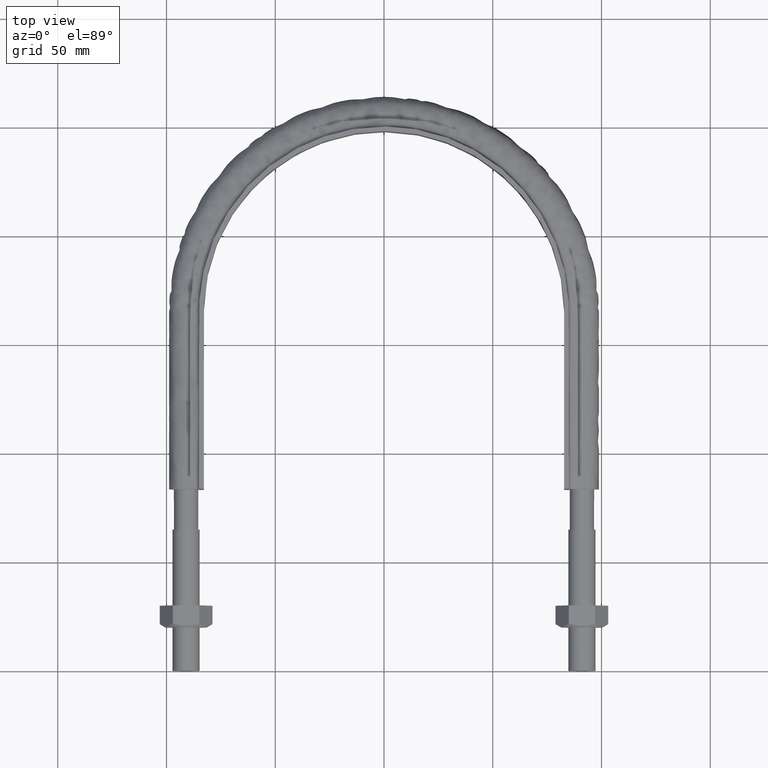
[diagram: clean part render]
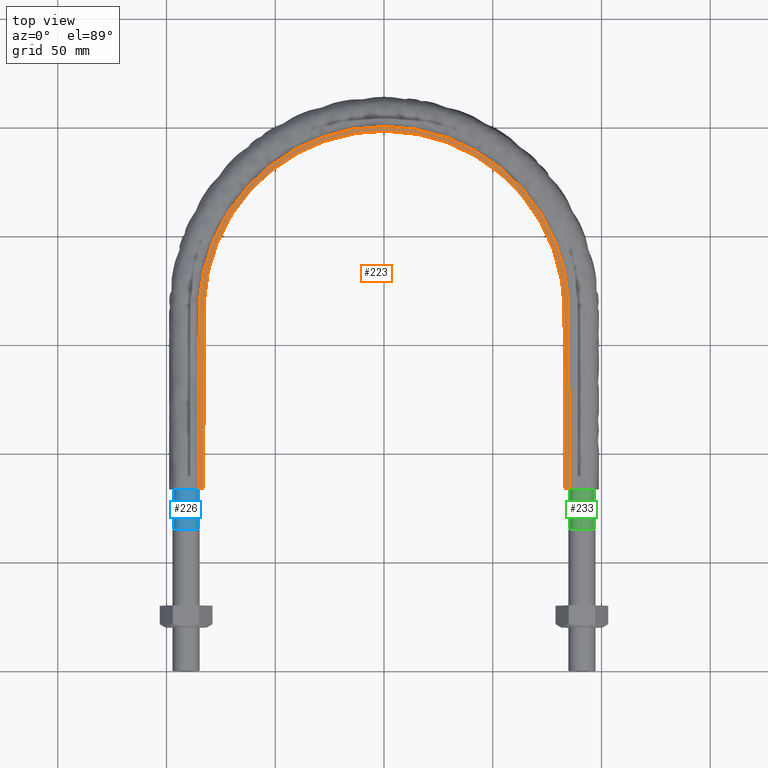
[diagram: same view with three faces highlighted in distinct colors, each labeled with its STEP entity id]
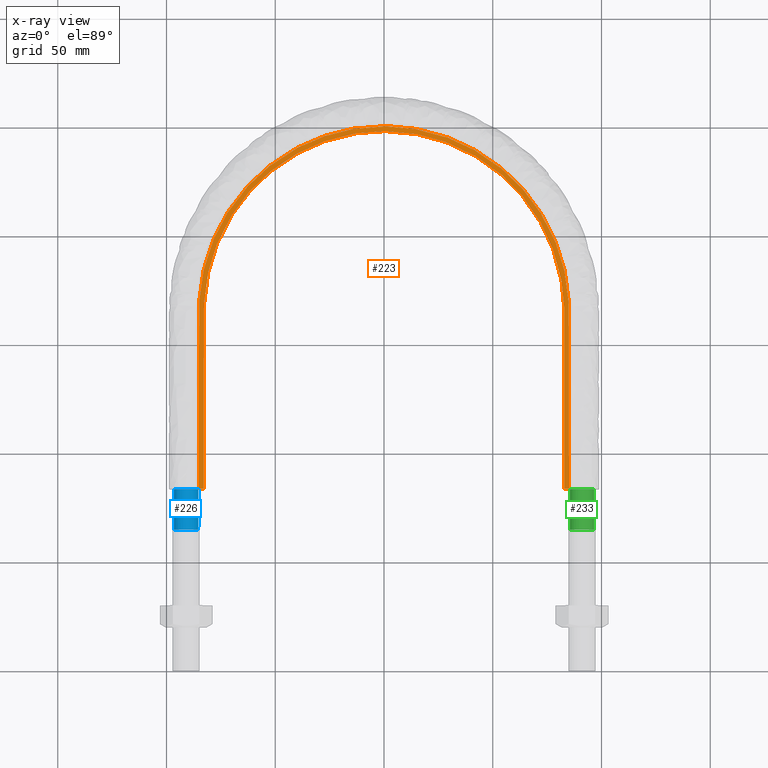
[diagram: x-ray of the same camera — body ghosted, the three highlighted faces saturated]
A machine part, top view with three faces highlighted in distinct colors.
The next image is the same camera in x-ray (body ghosted, the three faces saturated) — at least one of them is partly hidden behind the body in this view.
Their STEP definitions:

[orange] entity #223 — the highlighted planar face has unit normal (0, 0, 1).
#223 = ADVANCED_FACE( '', ( #270 ), #271, .T. );
#270 = FACE_OUTER_BOUND( '', #373, .T. );
#271 = PLANE( '', #374 );
#373 = EDGE_LOOP( '', ( #1408, #1409, #1410, #1411 ) );
#374 = AXIS2_PLACEMENT_3D( '', #1412, #1413, #1414 );
#1408 = ORIENTED_EDGE( '', *, *, #1655, .T. );
#1409 = ORIENTED_EDGE( '', *, *, #1665, .T. );
#1410 = ORIENTED_EDGE( '', *, *, #1664, .T. );
#1411 = ORIENTED_EDGE( '', *, *, #1666, .F. );
#1412 = CARTESIAN_POINT( '', ( 150.000000000000, 383.500000000000, 15.0000000000000 ) );
#1413 = DIRECTION( '', ( 0.000000000000000, 0.000000000000000, 1.00000000000000 ) );
#1414 = DIRECTION( '', ( 1.22460635382238E-016, 1.00000000000000, 0.000000000000000 ) );
#1655 = EDGE_CURVE( '', #1740, #1738, #1741, .T. );
#1664 = EDGE_CURVE( '', #1752, #1754, #1756, .T. );
#1665 = EDGE_CURVE( '', #1738, #1752, #1757, .T. );
#1666 = EDGE_CURVE( '', #1740, #1754, #1758, .F. );
#1738 = VERTEX_POINT( '', #1896 );
#1740 = VERTEX_POINT( '', #1899 );
#1741 = LINE( '', #1900, #1901 );
#1752 = VERTEX_POINT( '', #1986 );
#1754 = VERTEX_POINT( '', #1989 );
#1756 = LINE( '', #2021, #2022 );
#1757 = B_SPLINE_CURVE_WITH_KNOTS( '', 3, ( #2023, #2024, #2025, #2026, #2027, #2028, #2029, #2030, #2031, #2032, #2033, #2034, #2035, #2036, #2037, #2038, #2039 ), .UNSPECIFIED., .F., .F., ( 4, 3, 1, 1, 1, 1, 1, 1, 1, 3, 4 ), ( -10.0000000000000, -9.00000000000000, -8.00000000000000, -7.00000000000000, -6.00000000000000, -5.00000000000000, -4.00000000000000, -3.00000000000000, -2.00000000000000, -1.00000000000000, 0.000000000000000 ), .UNSPECIFIED. );
#1758 = B_SPLINE_CURVE_WITH_KNOTS( '', 3, ( #2040, #2041, #2042, #2043, #2044, #2045, #2046, #2047, #2048, #2049, #2050, #2051, #2052, #2053, #2054, #2055, #2056 ), .UNSPECIFIED., .F., .F., ( 4, 3, 1, 1, 1, 1, 1, 1, 1, 3, 4 ), ( 0.000000000000000, 1.00000000000000, 2.00000000000000, 3.00000000000000, 4.00000000000000, 5.00000000000000, 6.00000000000000, 7.00000000000000, 8.00000000000000, 9.00000000000000, 10.0000000000000 ), .UNSPECIFIED. );
#1896 = CARTESIAN_POINT( '', ( -82.8499999999999, 83.5000000000003, 15.0000000000000 ) );
#1899 = CARTESIAN_POINT( '', ( -85.0499999999999, 83.5000000000003, 15.0000000000000 ) );
#1900 = CARTESIAN_POINT( '', ( -150.000000000000, 83.5000000000003, 15.0000000000000 ) );
#1901 = VECTOR( '', #2386, 1000.00000000000 );
#1986 = CARTESIAN_POINT( '', ( 82.8500000000002, 83.5000000000003, 15.0000000000000 ) );
#1989 = CARTESIAN_POINT( '', ( 85.0500000000002, 83.5000000000003, 15.0000000000000 ) );
#2021 = CARTESIAN_POINT( '', ( -150.000000000000, 83.5000000000003, 15.0000000000000 ) );
#2022 = VECTOR( '', #2390, 1000.00000000000 );
#2023 = CARTESIAN_POINT( '', ( -82.8500000000000, 83.5000000000001, 15.0000000000000 ) );
#2024 = CARTESIAN_POINT( '', ( -82.8500000000000, 110.716666666667, 15.0000000000000 ) );
#2025 = CARTESIAN_POINT( '', ( -82.8500000000000, 137.933333333333, 15.0000000000000 ) );
#2026 = CARTESIAN_POINT( '', ( -82.8500000000000, 165.150000000000, 15.0000000000000 ) );
#2027 = CARTESIAN_POINT( '', ( -82.8500000000000, 175.979512005492, 15.0000000000000 ) );
#2028 = CARTESIAN_POINT( '', ( -78.5361555605724, 197.687272457852, 15.0000000000000 ) );
#2029 = CARTESIAN_POINT( '', ( -60.1089711493570, 225.257212617967, 15.0000000000000 ) );
#2030 = CARTESIAN_POINT( '', ( -32.5307407698323, 243.686657998112, 15.0000000000000 ) );
#2031 = CARTESIAN_POINT( '', ( 5.83899204915099E-014, 250.156671000944, 15.0000000000000 ) );
#2032 = CARTESIAN_POINT( '', ( 32.5307407698323, 243.686657998112, 15.0000000000000 ) );
#2033 = CARTESIAN_POINT( '', ( 60.1089711493571, 225.257212617967, 15.0000000000000 ) );
#2034 = CARTESIAN_POINT( '', ( 78.5361555605725, 197.687272457852, 15.0000000000000 ) );
#2035 = CARTESIAN_POINT( '', ( 82.8500000000000, 175.979512005492, 15.0000000000000 ) );
#2036 = CARTESIAN_POINT( '', ( 82.8500000000000, 165.150000000000, 15.0000000000000 ) );
#2037 = CARTESIAN_POINT( '', ( 82.8500000000000, 137.933333333333, 15.0000000000000 ) );
#2038 = CARTESIAN_POINT( '', ( 82.8500000000000, 110.716666666667, 15.0000000000000 ) );
#2039 = CARTESIAN_POINT( '', ( 82.8500000000000, 83.5000000000000, 15.0000000000000 ) );
#2040 = CARTESIAN_POINT( '', ( 85.0500000000000, 83.5000000000000, 15.0000000000000 ) );
#2041 = CARTESIAN_POINT( '', ( 85.0500000000000, 110.716666666667, 15.0000000000000 ) );
#2042 = CARTESIAN_POINT( '', ( 85.0500000000000, 137.933333333333, 15.0000000000000 ) );
#2043 = CARTESIAN_POINT( '', ( 85.0500000000000, 165.150000000000, 15.0000000000000 ) );
#2044 = CARTESIAN_POINT( '', ( 85.0500000000000, 176.271250144316, 15.0000000000000 ) );
#2045 = CARTESIAN_POINT( '', ( 80.6216056780530, 198.549331025117, 15.0000000000000 ) );
#2046 = CARTESIAN_POINT( '', ( 61.7051055673243, 226.853821731524, 15.0000000000000 ) );
#2047 = CARTESIAN_POINT( '', ( 33.3945624921453, 245.771972488282, 15.0000000000000 ) );
#2048 = CARTESIAN_POINT( '', ( 5.17274622156451E-014, 252.414013755859, 15.0000000000000 ) );
#2049 = CARTESIAN_POINT( '', ( -33.3945624921452, 245.771972488282, 15.0000000000000 ) );
#2050 = CARTESIAN_POINT( '', ( -61.7051055673243, 226.853821731524, 15.0000000000000 ) );
#2051 = CARTESIAN_POINT( '', ( -80.6216056780529, 198.549331025117, 15.0000000000000 ) );
#2052 = CARTESIAN_POINT( '', ( -85.0500000000000, 176.271250144316, 15.0000000000000 ) );
#2053 = CARTESIAN_POINT( '', ( -85.0500000000000, 165.150000000000, 15.0000000000000 ) );
#2054 = CARTESIAN_POINT( '', ( -85.0500000000000, 137.933333333333, 15.0000000000000 ) );
#2055 = CARTESIAN_POINT( '', ( -85.0500000000000, 110.716666666667, 15.0000000000000 ) );
#2056 = CARTESIAN_POINT( '', ( -85.0500000000000, 83.5000000000001, 15.0000000000000 ) );
#2386 = DIRECTION( '', ( 1.00000000000000, -1.22460635382238E-016, 0.000000000000000 ) );
#2390 = DIRECTION( '', ( 1.00000000000000, -1.22460635382238E-016, 0.000000000000000 ) );

[blue] entity #226 — the highlighted cylindrical surface (bore or boss wall) has radius 5.6 mm, axis along (0, 1, -0).
#226 = ADVANCED_FACE( '', ( #277, #278 ), #279, .T. );
#277 = FACE_OUTER_BOUND( '', #1092, .T. );
#278 = FACE_OUTER_BOUND( '', #1093, .T. );
#279 = CYLINDRICAL_SURFACE( '', #1094, 5.59999999999999 );
#1092 = EDGE_LOOP( '', ( #1421, #1422, #1423, #1424, #1425, #1426, #1427, #1428 ) );
#1093 = EDGE_LOOP( '', ( #1429 ) );
#1094 = AXIS2_PLACEMENT_3D( '', #1430, #1431, #1432 );
#1421 = ORIENTED_EDGE( '', *, *, #1667, .F. );
#1422 = ORIENTED_EDGE( '', *, *, #1668, .F. );
#1423 = ORIENTED_EDGE( '', *, *, #1669, .F. );
#1424 = ORIENTED_EDGE( '', *, *, #1670, .F. );
#1425 = ORIENTED_EDGE( '', *, *, #1671, .F. );
#1426 = ORIENTED_EDGE( '', *, *, #1672, .F. );
#1427 = ORIENTED_EDGE( '', *, *, #1673, .F. );
#1428 = ORIENTED_EDGE( '', *, *, #1674, .F. );
#1429 = ORIENTED_EDGE( '', *, *, #1675, .T. );
#1430 = CARTESIAN_POINT( '', ( -91.0000000000000, 83.5000000000000, -1.51545036285519E-014 ) );
#1431 = DIRECTION( '', ( 2.44921270764475E-016, 1.00000000000000, -3.06151588455594E-016 ) );
#1432 = DIRECTION( '', ( 1.00000000000000, -2.44921270764475E-016, 0.000000000000000 ) );
#1667 = EDGE_CURVE( '', #1759, #1760, #1761, .T. );
#1668 = EDGE_CURVE( '', #1762, #1759, #1763, .T. );
#1669 = EDGE_CURVE( '', #1764, #1762, #1765, .T. );
#1670 = EDGE_CURVE( '', #1766, #1764, #1767, .T. );
#1671 = EDGE_CURVE( '', #1768, #1766, #1769, .T. );
#1672 = EDGE_CURVE( '', #1770, #1768, #1771, .T. );
#1673 = EDGE_CURVE( '', #1772, #1770, #1773, .T. );
#1674 = EDGE_CURVE( '', #1760, #1772, #1774, .T. );
#1675 = EDGE_CURVE( '', #1775, #1775, #1776, .F. );
#1759 = VERTEX_POINT( '', #2057 );
#1760 = VERTEX_POINT( '', #2058 );
#1761 = B_SPLINE_CURVE_WITH_KNOTS( '', 3, ( #2059, #2060, #2061, #2062 ), .UNSPECIFIED., .F., .F., ( 4, 4 ), ( 0.000000000000000, 1.00000000000000 ), .UNSPECIFIED. );
#1762 = VERTEX_POINT( '', #2063 );
#1763 = B_SPLINE_CURVE_WITH_KNOTS( '', 3, ( #2064, #2065, #2066, #2067 ), .UNSPECIFIED., .F., .F., ( 4, 4 ), ( 0.000000000000000, 1.00000000000000 ), .UNSPECIFIED. );
#1764 = VERTEX_POINT( '', #2068 );
#1765 = B_SPLINE_CURVE_WITH_KNOTS( '', 3, ( #2069, #2070, #2071, #2072 ), .UNSPECIFIED., .F., .F., ( 4, 4 ), ( 0.000000000000000, 1.00000000000000 ), .UNSPECIFIED. );
#1766 = VERTEX_POINT( '', #2073 );
#1767 = B_SPLINE_CURVE_WITH_KNOTS( '', 3, ( #2074, #2075, #2076, #2077 ), .UNSPECIFIED., .F., .F., ( 4, 4 ), ( 0.000000000000000, 1.00000000000000 ), .UNSPECIFIED. );
#1768 = VERTEX_POINT( '', #2078 );
#1769 = B_SPLINE_CURVE_WITH_KNOTS( '', 3, ( #2079, #2080, #2081, #2082 ), .UNSPECIFIED., .F., .F., ( 4, 4 ), ( 0.000000000000000, 1.00000000000000 ), .UNSPECIFIED. );
#1770 = VERTEX_POINT( '', #2083 );
#1771 = B_SPLINE_CURVE_WITH_KNOTS( '', 3, ( #2084, #2085, #2086, #2087 ), .UNSPECIFIED., .F., .F., ( 4, 4 ), ( 0.000000000000000, 1.00000000000000 ), .UNSPECIFIED. );
#1772 = VERTEX_POINT( '', #2088 );
#1773 = B_SPLINE_CURVE_WITH_KNOTS( '', 3, ( #2089, #2090, #2091, #2092 ), .UNSPECIFIED., .F., .F., ( 4, 4 ), ( 0.000000000000000, 1.00000000000000 ), .UNSPECIFIED. );
#1774 = B_SPLINE_CURVE_WITH_KNOTS( '', 3, ( #2093, #2094, #2095, #2096 ), .UNSPECIFIED., .F., .F., ( 4, 4 ), ( 0.000000000000000, 1.00000000000000 ), .UNSPECIFIED. );
#1775 = VERTEX_POINT( '', #2097 );
#1776 = CIRCLE( '', #2098, 5.59999999999999 );
#2057 = CARTESIAN_POINT( '', ( -87.0402020253699, 83.5000000000000, 3.95979797465925 ) );
#2058 = CARTESIAN_POINT( '', ( -85.4000000000000, 83.5000000000003, 6.24746618339163E-014 ) );
#2059 = CARTESIAN_POINT( '', ( -87.0402020253699, 83.5000000000003, 3.95979797465925 ) );
#2060 = CARTESIAN_POINT( '', ( -86.0058874503102, 83.5000000000003, 2.92548339960766 ) );
#2061 = CARTESIAN_POINT( '', ( -85.4000000000000, 83.5000000000003, 1.46274169980383 ) );
#2062 = CARTESIAN_POINT( '', ( -85.4000000000000, 83.5000000000003, 3.25260651745651E-016 ) );
#2063 = CARTESIAN_POINT( '', ( -90.9999999999994, 83.5000000000000, 5.59999999999998 ) );
#2064 = CARTESIAN_POINT( '', ( -91.0000000000069, 83.5000000000003, 5.59999999999976 ) );
#2065 = CARTESIAN_POINT( '', ( -89.5372583002130, 83.5000000000003, 5.60000000000127 ) );
#2066 = CARTESIAN_POINT( '', ( -88.0745166004197, 83.5000000000003, 4.99411254970100 ) );
#2067 = CARTESIAN_POINT( '', ( -87.0402020253699, 83.5000000000003, 3.95979797465926 ) );
#2068 = CARTESIAN_POINT( '', ( -94.9597979746449, 83.5000000000000, 3.95979797464439 ) );
#2069 = CARTESIAN_POINT( '', ( -94.9597979746448, 83.5000000000003, 3.95979797464453 ) );
#2070 = CARTESIAN_POINT( '', ( -93.9254833995939, 83.5000000000003, 4.99411254969548 ) );
#2071 = CARTESIAN_POINT( '', ( -92.4627416997967, 83.5000000000003, 5.60000000000014 ) );
#2072 = CARTESIAN_POINT( '', ( -90.9999999999994, 83.5000000000003, 5.59999999999999 ) );
#2073 = CARTESIAN_POINT( '', ( -96.6000000000000, 83.5000000000000, 1.22458835622040E-014 ) );
#2074 = CARTESIAN_POINT( '', ( -96.5999999999999, 83.5000000000003, 1.80031616938512E-011 ) );
#2075 = CARTESIAN_POINT( '', ( -96.5999999999950, 83.5000000000003, 1.46274169980885 ) );
#2076 = CARTESIAN_POINT( '', ( -95.9941125496912, 83.5000000000003, 2.92548339959792 ) );
#2077 = CARTESIAN_POINT( '', ( -94.9597979746449, 83.5000000000003, 3.95979797464439 ) );
#2078 = CARTESIAN_POINT( '', ( -94.9597979746514, 83.5000000000000, -3.95979797463796 ) );
#2079 = CARTESIAN_POINT( '', ( -94.9597979746561, 83.5000000000003, -3.95979797463345 ) );
#2080 = CARTESIAN_POINT( '', ( -95.9941125497035, 83.5000000000003, -2.92548339958026 ) );
#2081 = CARTESIAN_POINT( '', ( -96.6000000000050, 83.5000000000003, -1.46274169978168 ) );
#2082 = CARTESIAN_POINT( '', ( -96.6000000000000, 83.5000000000003, 1.81396627473673E-011 ) );
#2083 = CARTESIAN_POINT( '', ( -90.9999999999997, 83.5000000000000, -5.60000000000001 ) );
#2084 = CARTESIAN_POINT( '', ( -91.0000000000032, 83.5000000000003, -5.60000000000010 ) );
#2085 = CARTESIAN_POINT( '', ( -92.4627416998015, 83.5000000000003, -5.59999999999940 ) );
#2086 = CARTESIAN_POINT( '', ( -93.9254833996002, 83.5000000000003, -4.99411254969284 ) );
#2087 = CARTESIAN_POINT( '', ( -94.9597979746514, 83.5000000000003, -3.95979797463793 ) );
#2088 = CARTESIAN_POINT( '', ( -87.0402020253547, 83.5000000000000, -3.95979797464405 ) );
#2089 = CARTESIAN_POINT( '', ( -87.0402020253785, 83.5000000000003, -3.95979797466786 ) );
#2090 = CARTESIAN_POINT( '', ( -88.0745166004279, 83.5000000000003, -4.99411254970444 ) );
#2091 = CARTESIAN_POINT( '', ( -89.5372583002138, 83.5000000000003, -5.59999999999993 ) );
#2092 = CARTESIAN_POINT( '', ( -90.9999999999997, 83.5000000000003, -5.59999999999999 ) );
#2093 = CARTESIAN_POINT( '', ( -85.3999999999996, 83.5000000000003, -1.19024798697631E-011 ) );
#2094 = CARTESIAN_POINT( '', ( -85.4000000000023, 83.5000000000003, -1.46274169981343 ) );
#2095 = CARTESIAN_POINT( '', ( -86.0058874503137, 83.5000000000003, -2.92548339961587 ) );
#2096 = CARTESIAN_POINT( '', ( -87.0402020253786, 83.5000000000003, -3.95979797466797 ) );
#2097 = CARTESIAN_POINT( '', ( -91.0000000000000, 65.0000000000000, 5.59999999999998 ) );
#2098 = AXIS2_PLACEMENT_3D( '', #2391, #2392, #2393 );
#2391 = CARTESIAN_POINT( '', ( -91.0000000000000, 65.0000000000000, -9.49069924212342E-015 ) );
#2392 = DIRECTION( '', ( -2.44921270764475E-016, -1.00000000000000, 3.06151588455594E-016 ) );
#2393 = DIRECTION( '', ( 3.74915180455534E-032, 3.06151588455594E-016, 1.00000000000000 ) );

[green] entity #233 — the highlighted cylindrical surface (bore or boss wall) has radius 5.6 mm, axis along (0, 1, -0).
#233 = ADVANCED_FACE( '', ( #296, #297 ), #298, .T. );
#296 = FACE_OUTER_BOUND( '', #1297, .T. );
#297 = FACE_OUTER_BOUND( '', #1298, .T. );
#298 = CYLINDRICAL_SURFACE( '', #1299, 5.59999999999999 );
#1297 = EDGE_LOOP( '', ( #1472, #1473, #1474, #1475, #1476, #1477, #1478, #1479 ) );
#1298 = EDGE_LOOP( '', ( #1480 ) );
#1299 = AXIS2_PLACEMENT_3D( '', #1481, #1482, #1483 );
#1472 = ORIENTED_EDGE( '', *, *, #1679, .F. );
#1473 = ORIENTED_EDGE( '', *, *, #1678, .F. );
#1474 = ORIENTED_EDGE( '', *, *, #1677, .F. );
#1475 = ORIENTED_EDGE( '', *, *, #1676, .F. );
#1476 = ORIENTED_EDGE( '', *, *, #1683, .F. );
#1477 = ORIENTED_EDGE( '', *, *, #1682, .F. );
#1478 = ORIENTED_EDGE( '', *, *, #1681, .F. );
#1479 = ORIENTED_EDGE( '', *, *, #1680, .F. );
#1480 = ORIENTED_EDGE( '', *, *, #1687, .T. );
#1481 = CARTESIAN_POINT( '', ( 91.0000000000000, 83.5000000000000, -1.51545036285519E-014 ) );
#1482 = DIRECTION( '', ( 2.44921270764475E-016, 1.00000000000000, -3.06151588455594E-016 ) );
#1483 = DIRECTION( '', ( 1.00000000000000, -2.44921270764475E-016, 0.000000000000000 ) );
#1676 = EDGE_CURVE( '', #1777, #1778, #1779, .T. );
#1677 = EDGE_CURVE( '', #1778, #1780, #1781, .T. );
#1678 = EDGE_CURVE( '', #1780, #1782, #1783, .T. );
#1679 = EDGE_CURVE( '', #1782, #1784, #1785, .T. );
#1680 = EDGE_CURVE( '', #1784, #1786, #1787, .T. );
#1681 = EDGE_CURVE( '', #1786, #1788, #1789, .T. );
#1682 = EDGE_CURVE( '', #1788, #1790, #1791, .T. );
#1683 = EDGE_CURVE( '', #1790, #1777, #1792, .T. );
#1687 = EDGE_CURVE( '', #1799, #1799, #1800, .F. );
#1777 = VERTEX_POINT( '', #2099 );
#1778 = VERTEX_POINT( '', #2100 );
#1779 = B_SPLINE_CURVE_WITH_KNOTS( '', 3, ( #2101, #2102, #2103, #2104 ), .UNSPECIFIED., .F., .F., ( 4, 4 ), ( 0.000000000000000, 1.00000000000000 ), .UNSPECIFIED. );
#1780 = VERTEX_POINT( '', #2105 );
#1781 = B_SPLINE_CURVE_WITH_KNOTS( '', 3, ( #2106, #2107, #2108, #2109 ), .UNSPECIFIED., .F., .F., ( 4, 4 ), ( 0.000000000000000, 1.00000000000000 ), .UNSPECIFIED. );
#1782 = VERTEX_POINT( '', #2110 );
#1783 = B_SPLINE_CURVE_WITH_KNOTS( '', 3, ( #2111, #2112, #2113, #2114 ), .UNSPECIFIED., .F., .F., ( 4, 4 ), ( 0.000000000000000, 1.00000000000000 ), .UNSPECIFIED. );
#1784 = VERTEX_POINT( '', #2115 );
#1785 = B_SPLINE_CURVE_WITH_KNOTS( '', 3, ( #2116, #2117, #2118, #2119 ), .UNSPECIFIED., .F., .F., ( 4, 4 ), ( 0.000000000000000, 1.00000000000000 ), .UNSPECIFIED. );
#1786 = VERTEX_POINT( '', #2120 );
#1787 = B_SPLINE_CURVE_WITH_KNOTS( '', 3, ( #2121, #2122, #2123, #2124 ), .UNSPECIFIED., .F., .F., ( 4, 4 ), ( 0.000000000000000, 1.00000000000000 ), .UNSPECIFIED. );
#1788 = VERTEX_POINT( '', #2125 );
#1789 = B_SPLINE_CURVE_WITH_KNOTS( '', 3, ( #2126, #2127, #2128, #2129 ), .UNSPECIFIED., .F., .F., ( 4, 4 ), ( 0.000000000000000, 1.00000000000000 ), .UNSPECIFIED. );
#1790 = VERTEX_POINT( '', #2130 );
#1791 = B_SPLINE_CURVE_WITH_KNOTS( '', 3, ( #2131, #2132, #2133, #2134 ), .UNSPECIFIED., .F., .F., ( 4, 4 ), ( 0.000000000000000, 1.00000000000000 ), .UNSPECIFIED. );
#1792 = B_SPLINE_CURVE_WITH_KNOTS( '', 3, ( #2135, #2136, #2137, #2138 ), .UNSPECIFIED., .F., .F., ( 4, 4 ), ( 0.000000000000000, 1.00000000000000 ), .UNSPECIFIED. );
#1799 = VERTEX_POINT( '', #2145 );
#1800 = CIRCLE( '', #2146, 5.59999999999999 );
#2099 = CARTESIAN_POINT( '', ( 85.4000000000000, 83.5000000000003, -6.57793329442030E-014 ) );
#2100 = CARTESIAN_POINT( '', ( 87.0402020253551, 83.5000000000000, 3.95979797464437 ) );
#2101 = CARTESIAN_POINT( '', ( 85.4000000000000, 83.5000000000003, 3.25260651745651E-016 ) );
#2102 = CARTESIAN_POINT( '', ( 85.4000000000000, 83.5000000000003, 1.46274169980807 ) );
#2103 = CARTESIAN_POINT( '', ( 86.0058874503138, 83.5000000000003, 2.92548339961614 ) );
#2104 = CARTESIAN_POINT( '', ( 87.0402020253789, 83.5000000000003, 3.95979797466825 ) );
#2105 = CARTESIAN_POINT( '', ( 90.9999999999999, 83.5000000000000, 5.59999999999998 ) );
#2106 = CARTESIAN_POINT( '', ( 87.0402020253789, 83.5000000000003, 3.95979797466825 ) );
#2107 = CARTESIAN_POINT( '', ( 88.0745166004283, 83.5000000000003, 4.99411254970460 ) );
#2108 = CARTESIAN_POINT( '', ( 89.5372583002196, 83.5000000000003, 5.60000000000226 ) );
#2109 = CARTESIAN_POINT( '', ( 91.0000000000119, 83.5000000000003, 5.59999999999961 ) );
#2110 = CARTESIAN_POINT( '', ( 94.9597979746584, 83.5000000000000, 3.95979797463088 ) );
#2111 = CARTESIAN_POINT( '', ( 90.9999999999999, 83.5000000000003, 5.59999999999999 ) );
#2112 = CARTESIAN_POINT( '', ( 92.4627416998034, 83.5000000000002, 5.60000000000003 ) );
#2113 = CARTESIAN_POINT( '', ( 93.9254833996068, 83.5000000000002, 4.99411254969008 ) );
#2114 = CARTESIAN_POINT( '', ( 94.9597979746584, 83.5000000000002, 3.95979797463092 ) );
#2115 = CARTESIAN_POINT( '', ( 96.6000000000000, 83.5000000000000, -1.51545036285519E-014 ) );
#2116 = CARTESIAN_POINT( '', ( 94.9597979746585, 83.5000000000003, 3.95979797463091 ) );
#2117 = CARTESIAN_POINT( '', ( 95.9941125497051, 83.5000000000003, 2.92548339957666 ) );
#2118 = CARTESIAN_POINT( '', ( 96.6000000000064, 83.5000000000003, 1.46274169977514 ) );
#2119 = CARTESIAN_POINT( '', ( 96.5999999999998, 83.5000000000003, -2.51603054950688E-011 ) );
#2120 = CARTESIAN_POINT( '', ( 94.9597979746457, 83.5000000000000, -3.95979797464368 ) );
#2121 = CARTESIAN_POINT( '', ( 96.6000000000000, 83.5000000000002, -1.81386869654121E-011 ) );
#2122 = CARTESIAN_POINT( '', ( 96.5999999999950, 83.5000000000002, -1.46274169980858 ) );
#2123 = CARTESIAN_POINT( '', ( 95.9941125496903, 83.5000000000002, -2.92548339960028 ) );
#2124 = CARTESIAN_POINT( '', ( 94.9597979746409, 83.5000000000002, -3.95979797464817 ) );
#2125 = CARTESIAN_POINT( '', ( 91.0000000000002, 83.5000000000000, -5.60000000000001 ) );
#2126 = CARTESIAN_POINT( '', ( 94.9597979746456, 83.5000000000002, -3.95979797464369 ) );
#2127 = CARTESIAN_POINT( '', ( 93.9254833995949, 83.5000000000002, -4.99411254969500 ) );
#2128 = CARTESIAN_POINT( '', ( 92.4627416997978, 83.5000000000002, -5.59999999999985 ) );
#2129 = CARTESIAN_POINT( '', ( 91.0000000000007, 83.5000000000002, -5.60000000000001 ) );
#2130 = CARTESIAN_POINT( '', ( 87.0402020253615, 83.5000000000000, -3.95979797465083 ) );
#2131 = CARTESIAN_POINT( '', ( 91.0000000000002, 83.5000000000003, -5.59999999999999 ) );
#2132 = CARTESIAN_POINT( '', ( 89.5372583002061, 83.5000000000003, -5.60000000000003 ) );
#2133 = CARTESIAN_POINT( '', ( 88.0745166004120, 83.5000000000003, -4.99411254969787 ) );
#2134 = CARTESIAN_POINT( '', ( 87.0402020253615, 83.5000000000003, -3.95979797465085 ) );
#2135 = CARTESIAN_POINT( '', ( 87.0402020253615, 83.5000000000002, -3.95979797465081 ) );
#2136 = CARTESIAN_POINT( '', ( 86.0058874503070, 83.5000000000002, -2.92548339959969 ) );
#2137 = CARTESIAN_POINT( '', ( 85.4000000000006, 83.5000000000003, -1.46274169980130 ) );
#2138 = CARTESIAN_POINT( '', ( 85.3999999999999, 83.5000000000003, -3.13941581064903E-012 ) );
#2145 = CARTESIAN_POINT( '', ( 91.0000000000000, 65.0000000000000, 5.59999999999998 ) );
#2146 = AXIS2_PLACEMENT_3D( '', #2403, #2404, #2405 );
#2403 = CARTESIAN_POINT( '', ( 91.0000000000000, 65.0000000000000, -9.49069924212342E-015 ) );
#2404 = DIRECTION( '', ( -2.44921270764475E-016, -1.00000000000000, 3.06151588455594E-016 ) );
#2405 = DIRECTION( '', ( 3.74915180455534E-032, 3.06151588455594E-016, 1.00000000000000 ) );